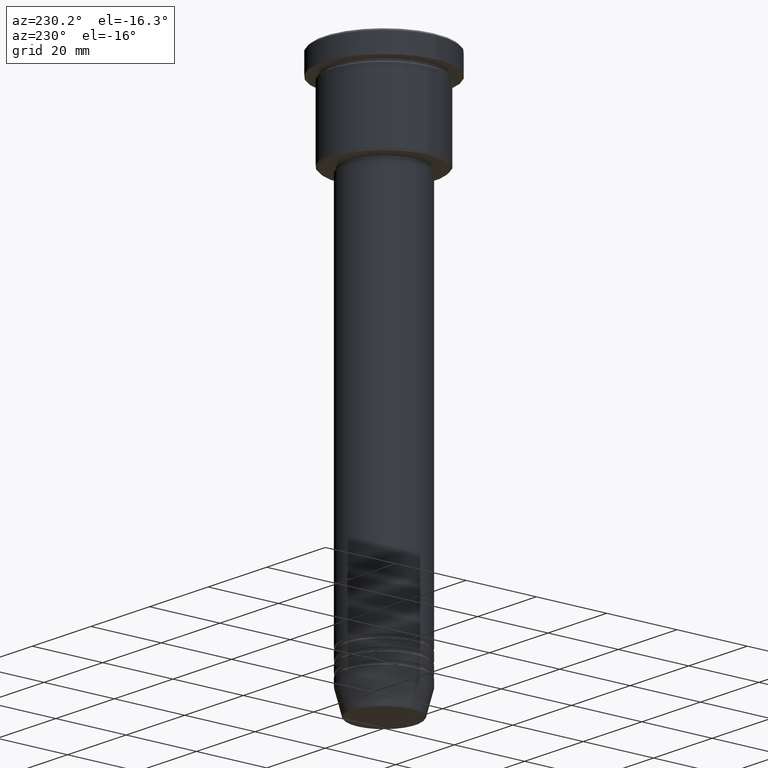
[diagram: clean part render]
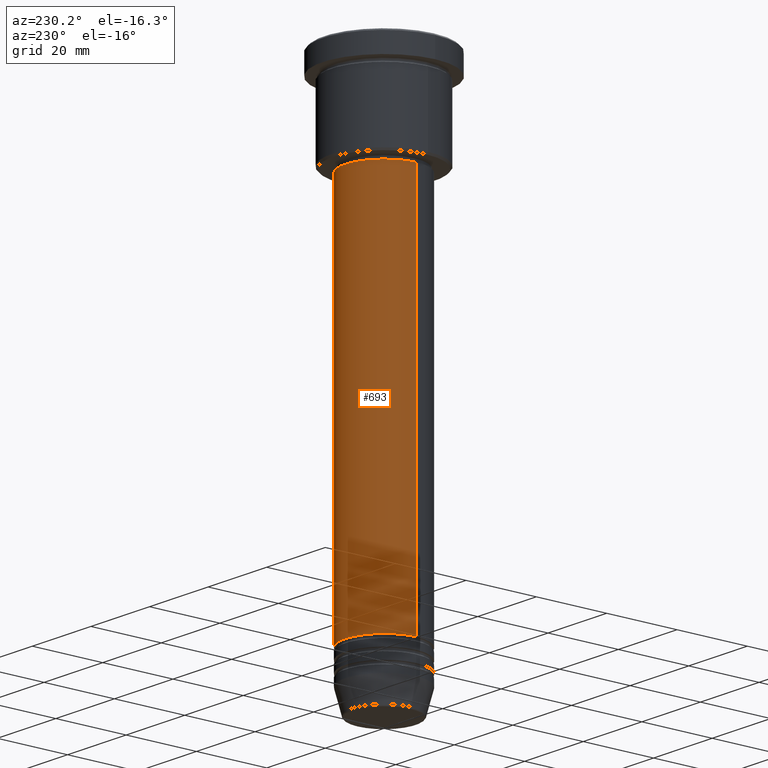
[diagram: same view with one face highlighted and labeled with its STEP entity id]
A machine part, auxiliary view. The second image highlights one B-rep face of the part: STEP entity #693.
In plain terms, the highlighted cylindrical surface (partial cylindrical patch) has radius 11 mm, axis along (-0, -0, 1).
Its self-contained STEP definition (entity closure, byte-faithful):
#1 = DIRECTION ( 'NONE',  ( -0.000000000000000000, -0.000000000000000000, 1.000000000000000000 ) ) ;
#13 = DIRECTION ( 'NONE',  ( 1.000000000000000000, 0.000000000000000000, 0.000000000000000000 ) ) ;
#34 = VERTEX_POINT ( 'NONE', #866 ) ;
#43 = AXIS2_PLACEMENT_3D ( 'NONE', #1087, #556, #627 ) ;
#58 = LINE ( 'NONE', #240, #574 ) ;
#69 = ORIENTED_EDGE ( 'NONE', *, *, #905, .F. ) ;
#99 = VECTOR ( 'NONE', #961, 1000.000000000000000 ) ;
#113 = EDGE_CURVE ( 'NONE', #34, #145, #58, .T. ) ;
#122 = AXIS2_PLACEMENT_3D ( 'NONE', #603, #794, #1164 ) ;
#145 = VERTEX_POINT ( 'NONE', #330 ) ;
#240 = CARTESIAN_POINT ( 'NONE',  ( 11.00000000000000000, 0.000000000000000000, 0.000000000000000000 ) ) ;
#262 = CARTESIAN_POINT ( 'NONE',  ( 0.000000000000000000, 0.000000000000000000, -135.9999999999999432 ) ) ;
#301 = VERTEX_POINT ( 'NONE', #732 ) ;
#307 = AXIS2_PLACEMENT_3D ( 'NONE', #262, #1, #13 ) ;
#317 = CARTESIAN_POINT ( 'NONE',  ( -11.00000000000000000, 1.347111479062088405E-15, 0.000000000000000000 ) ) ;
#327 = EDGE_LOOP ( 'NONE', ( #811, #1101, #69, #1085 ) ) ;
#330 = CARTESIAN_POINT ( 'NONE',  ( 11.00000000000000000, 0.000000000000000000, -27.99999999999998934 ) ) ;
#503 = EDGE_CURVE ( 'NONE', #733, #301, #773, .T. ) ;
#556 = DIRECTION ( 'NONE',  ( -0.000000000000000000, -0.000000000000000000, 1.000000000000000000 ) ) ;
#574 = VECTOR ( 'NONE', #1138, 1000.000000000000000 ) ;
#603 = CARTESIAN_POINT ( 'NONE',  ( 0.000000000000000000, 0.000000000000000000, -27.99999999999998934 ) ) ;
#622 = FACE_OUTER_BOUND ( 'NONE', #327, .T. ) ;
#627 = DIRECTION ( 'NONE',  ( 1.000000000000000000, 0.000000000000000000, 0.000000000000000000 ) ) ;
#639 = EDGE_CURVE ( 'NONE', #34, #733, #764, .T. ) ;
#688 = CIRCLE ( 'NONE', #122, 11.00000000000000000 ) ;
#693 = ADVANCED_FACE ( 'NONE', ( #622 ), #908, .T. ) ;
#732 = CARTESIAN_POINT ( 'NONE',  ( -11.00000000000000000, 1.347111479062088405E-15, -27.99999999999998934 ) ) ;
#733 = VERTEX_POINT ( 'NONE', #1023 ) ;
#764 = CIRCLE ( 'NONE', #307, 11.00000000000000000 ) ;
#773 = LINE ( 'NONE', #317, #99 ) ;
#794 = DIRECTION ( 'NONE',  ( -0.000000000000000000, -0.000000000000000000, 1.000000000000000000 ) ) ;
#811 = ORIENTED_EDGE ( 'NONE', *, *, #639, .T. ) ;
#866 = CARTESIAN_POINT ( 'NONE',  ( 11.00000000000000000, 0.000000000000000000, -135.9999999999999432 ) ) ;
#905 = EDGE_CURVE ( 'NONE', #145, #301, #688, .T. ) ;
#908 = CYLINDRICAL_SURFACE ( 'NONE', #43, 11.00000000000000000 ) ;
#961 = DIRECTION ( 'NONE',  ( -0.000000000000000000, -0.000000000000000000, 1.000000000000000000 ) ) ;
#1023 = CARTESIAN_POINT ( 'NONE',  ( -11.00000000000000000, 1.347111479062088405E-15, -135.9999999999999432 ) ) ;
#1085 = ORIENTED_EDGE ( 'NONE', *, *, #113, .F. ) ;
#1087 = CARTESIAN_POINT ( 'NONE',  ( 0.000000000000000000, 0.000000000000000000, 0.000000000000000000 ) ) ;
#1101 = ORIENTED_EDGE ( 'NONE', *, *, #503, .T. ) ;
#1138 = DIRECTION ( 'NONE',  ( -0.000000000000000000, -0.000000000000000000, 1.000000000000000000 ) ) ;
#1164 = DIRECTION ( 'NONE',  ( 1.000000000000000000, 0.000000000000000000, 0.000000000000000000 ) ) ;